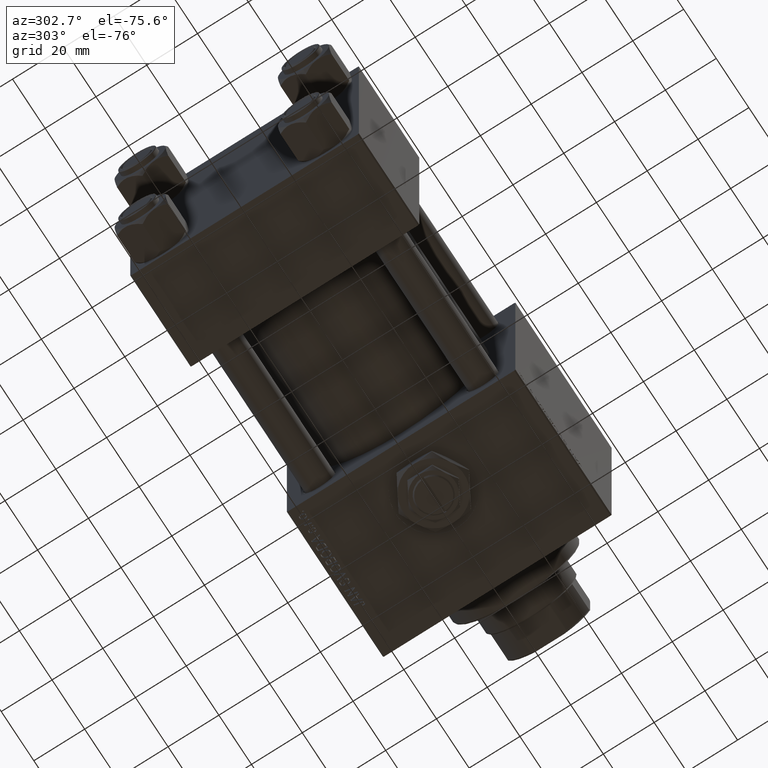
[diagram: clean part render]
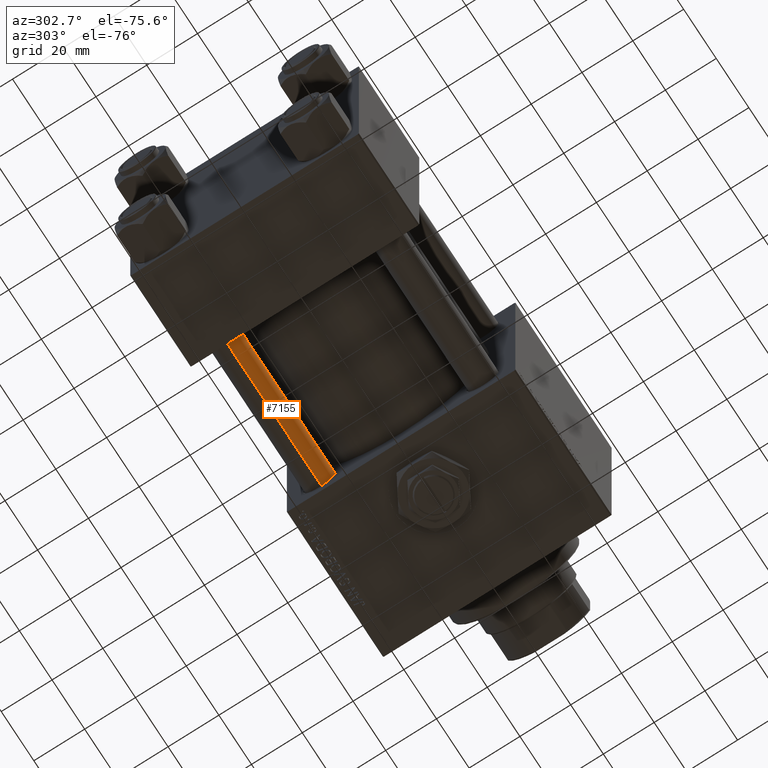
[diagram: same view with one face highlighted and labeled with its STEP entity id]
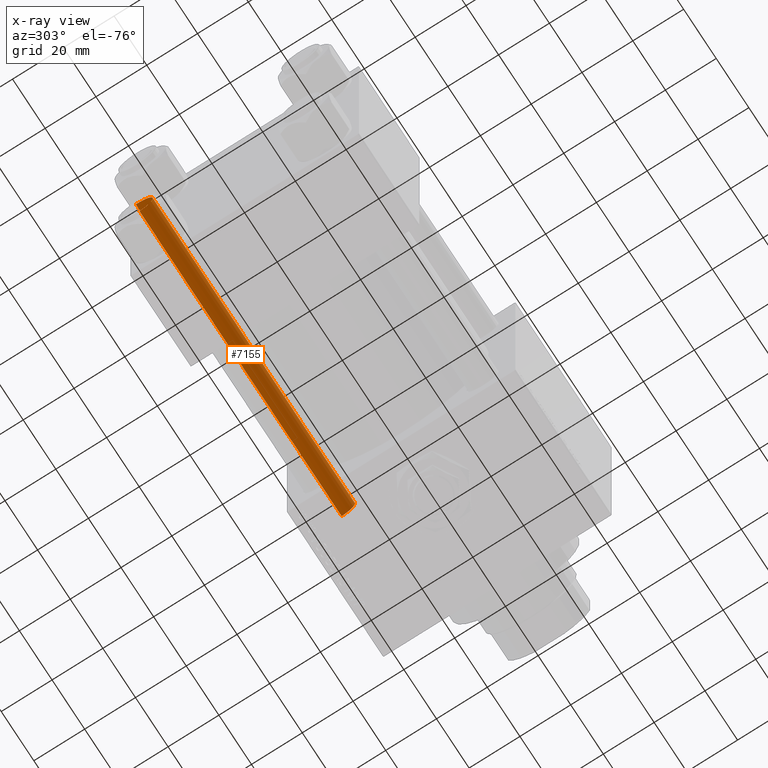
[diagram: x-ray of the same camera — body ghosted, the highlighted face saturated]
A machine part, auxiliary view. The second image highlights one B-rep face of the part: STEP entity #7155.
The next image is the same camera in x-ray: the body ghosted, the highlighted face saturated — about 0% of this face is hidden behind the body in this view.
In plain terms, the highlighted cylindrical surface (edge-blend (fillet) strip) has radius 6 mm, axis along (1, -0, 0).
Its self-contained STEP definition (entity closure, byte-faithful):
#505 = DIRECTION ( 'NONE',  ( -0.000000000000000000, -0.000000000000000000, 1.000000000000000000 ) ) ;
#3179 = FACE_OUTER_BOUND ( 'NONE', #39138, .T. ) ;
#3493 = CARTESIAN_POINT ( 'NONE',  ( -6.000000000000000888, 0.000000000000000000, 125.0000000000000000 ) ) ;
#4740 = CIRCLE ( 'NONE', #13104, 6.000000000000000888 ) ;
#6457 = VECTOR ( 'NONE', #40446, 1000.000000000000000 ) ;
#6964 = CARTESIAN_POINT ( 'NONE',  ( 6.000000000000000888, 7.347880794884120722E-16, 0.4999999999999865663 ) ) ;
#7155 = ADVANCED_FACE ( 'NONE', ( #3179 ), #15266, .T. ) ;
#7911 = LINE ( 'NONE', #40201, #6457 ) ;
#11326 = DIRECTION ( 'NONE',  ( -0.000000000000000000, -0.000000000000000000, -1.000000000000000000 ) ) ;
#12347 = EDGE_CURVE ( 'NONE', #22959, #23119, #4740, .T. ) ;
#12837 = DIRECTION ( 'NONE',  ( 1.000000000000000000, 0.000000000000000000, 0.000000000000000000 ) ) ;
#12989 = VECTOR ( 'NONE', #19774, 1000.000000000000000 ) ;
#13104 = AXIS2_PLACEMENT_3D ( 'NONE', #30605, #15118, #46618 ) ;
#13130 = ORIENTED_EDGE ( 'NONE', *, *, #31543, .T. ) ;
#14620 = EDGE_CURVE ( 'NONE', #22959, #39521, #7911, .T. ) ;
#15032 = CARTESIAN_POINT ( 'NONE',  ( -6.000000000000000888, 0.000000000000000000, 0.4999999999999865663 ) ) ;
#15118 = DIRECTION ( 'NONE',  ( 0.000000000000000000, 0.000000000000000000, -1.000000000000000000 ) ) ;
#15266 = CYLINDRICAL_SURFACE ( 'NONE', #33897, 6.000000000000000888 ) ;
#16914 = ORIENTED_EDGE ( 'NONE', *, *, #33954, .T. ) ;
#19356 = CARTESIAN_POINT ( 'NONE',  ( -6.000000000000000888, 0.000000000000000000, 124.5000000000000000 ) ) ;
#19774 = DIRECTION ( 'NONE',  ( -0.000000000000000000, -0.000000000000000000, -1.000000000000000000 ) ) ;
#22959 = VERTEX_POINT ( 'NONE', #50608 ) ;
#23119 = VERTEX_POINT ( 'NONE', #19356 ) ;
#23643 = CARTESIAN_POINT ( 'NONE',  ( 0.000000000000000000, 0.000000000000000000, 125.0000000000000000 ) ) ;
#29769 = ORIENTED_EDGE ( 'NONE', *, *, #14620, .F. ) ;
#30605 = CARTESIAN_POINT ( 'NONE',  ( 0.000000000000000000, 0.000000000000000000, 124.5000000000000000 ) ) ;
#31273 = DIRECTION ( 'NONE',  ( -1.000000000000000000, 0.000000000000000000, 0.000000000000000000 ) ) ;
#31543 = EDGE_CURVE ( 'NONE', #23119, #41986, #47344, .T. ) ;
#33897 = AXIS2_PLACEMENT_3D ( 'NONE', #23643, #11326, #31273 ) ;
#33954 = EDGE_CURVE ( 'NONE', #41986, #39521, #35712, .T. ) ;
#35712 = CIRCLE ( 'NONE', #40715, 6.000000000000000888 ) ;
#36988 = CARTESIAN_POINT ( 'NONE',  ( 0.000000000000000000, 0.000000000000000000, 0.4999999999999865663 ) ) ;
#39138 = EDGE_LOOP ( 'NONE', ( #29769, #48397, #13130, #16914 ) ) ;
#39521 = VERTEX_POINT ( 'NONE', #6964 ) ;
#40201 = CARTESIAN_POINT ( 'NONE',  ( 6.000000000000000888, 7.347880794884120722E-16, 125.0000000000000000 ) ) ;
#40446 = DIRECTION ( 'NONE',  ( -0.000000000000000000, -0.000000000000000000, -1.000000000000000000 ) ) ;
#40715 = AXIS2_PLACEMENT_3D ( 'NONE', #36988, #505, #12837 ) ;
#41986 = VERTEX_POINT ( 'NONE', #15032 ) ;
#46618 = DIRECTION ( 'NONE',  ( 1.000000000000000000, 0.000000000000000000, 0.000000000000000000 ) ) ;
#47344 = LINE ( 'NONE', #3493, #12989 ) ;
#48397 = ORIENTED_EDGE ( 'NONE', *, *, #12347, .T. ) ;
#50608 = CARTESIAN_POINT ( 'NONE',  ( 6.000000000000000888, 7.347880794884120722E-16, 124.5000000000000000 ) ) ;